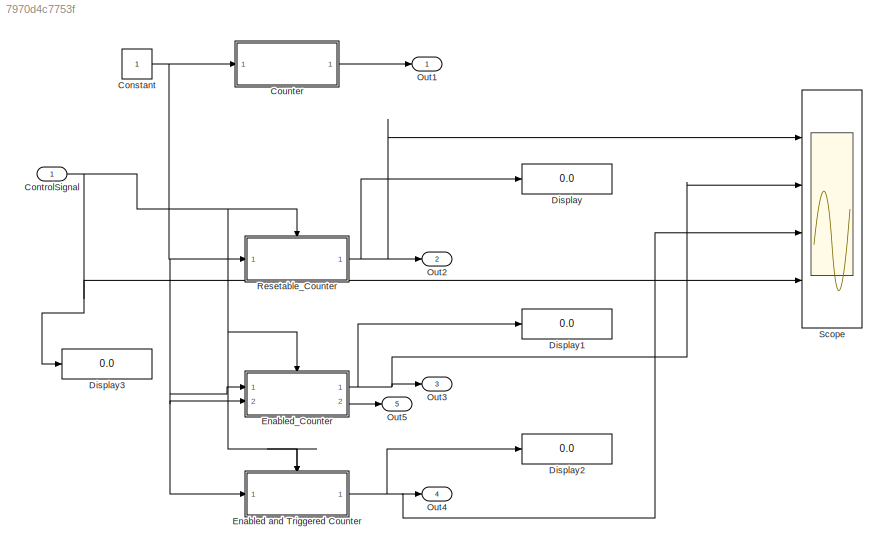
MODEL slx_7970d4c7753f
KIND model
CONFIG AbsTol = auto
CONFIG EnableMultiTasking = off
CONFIG FixedStep = 0.200000
CONFIG MaxStep = auto
CONFIG MinStep = auto
CONFIG RelTol = 1e-3
CONFIG SampleTimeConstraint = Unconstrained
CONFIG Solver = FixedStepDiscrete
CONFIG SolverName = FixedStepDiscrete
CONFIG StartTime = 0.0
CONFIG StopTime = 10.0
BLOCK [Constant] Constant
BLOCK [Inport] ControlSignal
  IconDisplay = Port number
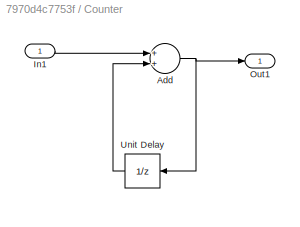
BLOCK [SubSystem] Counter
  Ports = [1, 1]
  RequestExecContextInheritance = off
  Variant = off
BLOCK [Sum] Counter/Add
  InputSameDT = off
  OutDataTypeStr = Inherit: Inherit via internal rule
  Ports = [2, 1]
  SaturateOnIntegerOverflow = off
BLOCK [Inport] Counter/In1
  IconDisplay = Port number
BLOCK [Outport] Counter/Out1
  IconDisplay = Port number
BLOCK [UnitDelay] Counter/Unit Delay
  InputProcessing = Elements as channels (sample based)
  SampleTime = -1
BLOCK [Display] Display
  Decimation = 1
  Ports = [1]
BLOCK [Display] Display1
  Decimation = 1
  Ports = [1]
BLOCK [Display] Display2
  Decimation = 1
  Ports = [1]
BLOCK [Display] Display3
  Decimation = 1
  Ports = [1]
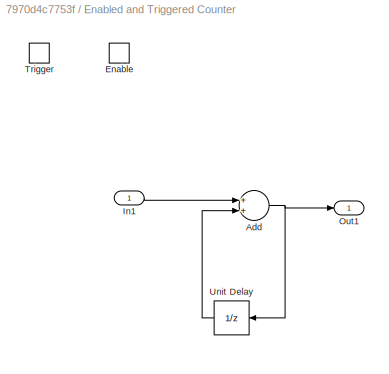
BLOCK [SubSystem] Enabled and Triggered Counter
  Ports = [1, 1, 1, 1]
  RequestExecContextInheritance = off
  TreatAsAtomicUnit = on
  Variant = off
BLOCK [Sum] Enabled and Triggered Counter/Add
  InputSameDT = off
  OutDataTypeStr = Inherit: Inherit via internal rule
  Ports = [2, 1]
  SaturateOnIntegerOverflow = off
BLOCK [EnablePort] Enabled and Triggered Counter/Enable
  Ports = []
  StatesWhenEnabling = reset
BLOCK [Inport] Enabled and Triggered Counter/In1
  IconDisplay = Port number
BLOCK [Outport] Enabled and Triggered Counter/Out1
  IconDisplay = Port number
BLOCK [TriggerPort] Enabled and Triggered Counter/Trigger
  Ports = []
  StatesWhenEnabling = held
  VariantControl = (inherit)
BLOCK [UnitDelay] Enabled and Triggered Counter/Unit Delay
  InputProcessing = Elements as channels (sample based)
  SampleTime = -1
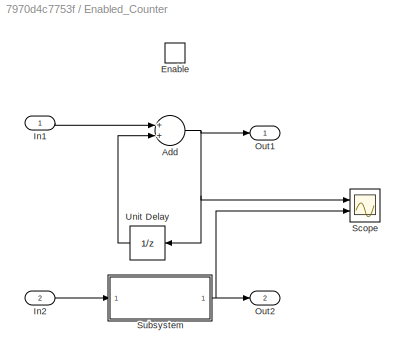
BLOCK [SubSystem] Enabled_Counter
  Ports = [2, 2, 1]
  RequestExecContextInheritance = off
  TreatAsAtomicUnit = on
  Variant = off
BLOCK [Sum] Enabled_Counter/Add
  InputSameDT = off
  OutDataTypeStr = Inherit: Inherit via internal rule
  Ports = [2, 1]
  SaturateOnIntegerOverflow = off
BLOCK [EnablePort] Enabled_Counter/Enable
  Ports = []
BLOCK [Inport] Enabled_Counter/In1
  IconDisplay = Port number
BLOCK [Inport] Enabled_Counter/In2
  IconDisplay = Port number
  Port = 2
BLOCK [Outport] Enabled_Counter/Out1
  IconDisplay = Port number
  InitialOutput = 0.2
  OutputWhenDisabled = reset
BLOCK [Outport] Enabled_Counter/Out2
  IconDisplay = Port number
  Port = 2
BLOCK [Scope] Enabled_Counter/Scope
  NumInputPorts = 2
  Ports = [2]
  ScopeSpecificationString = C++SS(StrPVP('Open','off'),StrPVP('TimeRange','auto'),StrPVP('TickLabels','OneTimeTick'),StrPVP('ShowLegends','off'),StrPVP('LimitDataPoints','off'),StrPVP('MaxDataPoints','5000'),StrPVP('SaveToWorkspace','off'),StrPVP('SaveName','ScopeData2'),StrPVP('YMin','-10.00000~0.625'),StrPVP('YMax','10.00000~4.375'),StrPVP('BlockParamSampleInput','off'),StrPVP('BlockParamSampleTime','-1'),StrPVP('ZoomMode'...<+621ch>
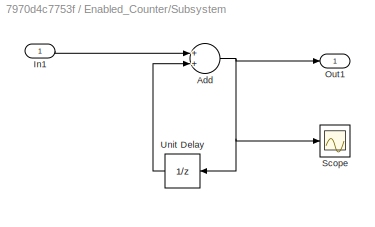
BLOCK [SubSystem] Enabled_Counter/Subsystem
  Ports = [1, 1]
  RequestExecContextInheritance = off
  TreatAsAtomicUnit = on
  Variant = off
BLOCK [Sum] Enabled_Counter/Subsystem/Add
  InputSameDT = off
  OutDataTypeStr = Inherit: Inherit via internal rule
  Ports = [2, 1]
  SaturateOnIntegerOverflow = off
BLOCK [Inport] Enabled_Counter/Subsystem/In1
  IconDisplay = Port number
BLOCK [Outport] Enabled_Counter/Subsystem/Out1
  IconDisplay = Port number
BLOCK [Scope] Enabled_Counter/Subsystem/Scope
  NumInputPorts = 1
  Ports = [1]
  ScopeSpecificationString = C++SS(StrPVP('Open','off'),StrPVP('TimeRange','auto'),StrPVP('TickLabels','OneTimeTick'),StrPVP('ShowLegends','off'),StrPVP('LimitDataPoints','off'),StrPVP('MaxDataPoints','5000'),StrPVP('SaveToWorkspace','off'),StrPVP('SaveName','ScopeData1'),StrPVP('YMin','0.625'),StrPVP('YMax','4.375'),StrPVP('BlockParamSampleInput','off'),StrPVP('BlockParamSampleTime','-1'),StrPVP('ZoomMode','on'),StrPVP('Grid...<+573ch>
BLOCK [UnitDelay] Enabled_Counter/Subsystem/Unit Delay
  InputProcessing = Elements as channels (sample based)
  SampleTime = -1
BLOCK [UnitDelay] Enabled_Counter/Unit Delay
  InputProcessing = Elements as channels (sample based)
  SampleTime = -1
BLOCK [Outport] Out1
  IconDisplay = Port number
BLOCK [Outport] Out2
  IconDisplay = Port number
  Port = 2
BLOCK [Outport] Out3
  IconDisplay = Port number
  Port = 3
BLOCK [Outport] Out4
  IconDisplay = Port number
  Port = 4
BLOCK [Outport] Out5
  IconDisplay = Port number
  Port = 5
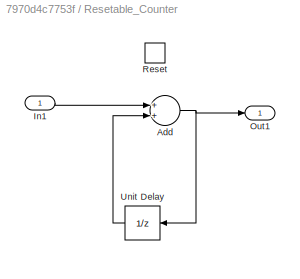
BLOCK [SubSystem] Resetable_Counter
  Ports = [1, 1, 0, 0, 0, 0, 0, 0, 1]
  RequestExecContextInheritance = off
  Variant = off
BLOCK [Sum] Resetable_Counter/Add
  InputSameDT = off
  OutDataTypeStr = Inherit: Inherit via internal rule
  Ports = [2, 1]
  SaturateOnIntegerOverflow = off
BLOCK [Inport] Resetable_Counter/In1
  IconDisplay = Port number
BLOCK [Outport] Resetable_Counter/Out1
  IconDisplay = Port number
BLOCK [ResetPort] Resetable_Counter/Reset
  DisableCoverage = on
BLOCK [UnitDelay] Resetable_Counter/Unit Delay
  InputProcessing = Elements as channels (sample based)
  SampleTime = -1
BLOCK [Scope] Scope
  NumInputPorts = 4
  Ports = [4]
  ScopeSpecificationString = C++SS(StrPVP('Open','off'),StrPVP('TimeRange','auto'),StrPVP('TickLabels','OneTimeTick'),StrPVP('ShowLegends','off'),StrPVP('LimitDataPoints','off'),StrPVP('MaxDataPoints','5000'),StrPVP('SaveToWorkspace','off'),StrPVP('SaveName','ScopeData'),StrPVP('YMin','0.5~-7.56953~-0.125~-0.125'),StrPVP('YMax','5.5~17.93047~1.125~1.125'),StrPVP('BlockParamSampleInput','off'),StrPVP('BlockParamSampleTime','-1...<+685ch>
NET Constant:1 -> Counter:1, Enabled and Triggered Counter:1, Enabled_Counter:1, Enabled_Counter:2, Resetable_Counter:1
NET ControlSignal:1 -> Display3:1, Enabled and Triggered Counter:enable, Enabled and Triggered Counter:trigger, Enabled_Counter:enable, Resetable_Counter:Reset, Scope:4
NET Counter/Add:1 -> Counter/Out1:1, Counter/Unit Delay:1
LINE Counter/In1:1 -> Counter/Add:1
LINE Counter/Unit Delay:1 -> Counter/Add:2
LINE Counter:1 -> Out1:1
NET Enabled and Triggered Counter/Add:1 -> Enabled and Triggered Counter/Out1:1, Enabled and Triggered Counter/Unit Delay:1
LINE Enabled and Triggered Counter/In1:1 -> Enabled and Triggered Counter/Add:1
LINE Enabled and Triggered Counter/Unit Delay:1 -> Enabled and Triggered Counter/Add:2
NET Enabled and Triggered Counter:1 -> Display2:1, Out4:1, Scope:3
NET Enabled_Counter/Add:1 -> Enabled_Counter/Out1:1, Enabled_Counter/Scope:1, Enabled_Counter/Unit Delay:1
LINE Enabled_Counter/In1:1 -> Enabled_Counter/Add:1
LINE Enabled_Counter/In2:1 -> Enabled_Counter/Subsystem:1
NET Enabled_Counter/Subsystem/Add:1 -> Enabled_Counter/Subsystem/Out1:1, Enabled_Counter/Subsystem/Scope:1, Enabled_Counter/Subsystem/Unit Delay:1
LINE Enabled_Counter/Subsystem/In1:1 -> Enabled_Counter/Subsystem/Add:1
LINE Enabled_Counter/Subsystem/Unit Delay:1 -> Enabled_Counter/Subsystem/Add:2
NET Enabled_Counter/Subsystem:1 -> Enabled_Counter/Out2:1, Enabled_Counter/Scope:2
LINE Enabled_Counter/Unit Delay:1 -> Enabled_Counter/Add:2
NET Enabled_Counter:1 -> Display1:1, Out3:1, Scope:2
LINE Enabled_Counter:2 -> Out5:1
NET Resetable_Counter/Add:1 -> Resetable_Counter/Out1:1, Resetable_Counter/Unit Delay:1
LINE Resetable_Counter/In1:1 -> Resetable_Counter/Add:1
LINE Resetable_Counter/Unit Delay:1 -> Resetable_Counter/Add:2
NET Resetable_Counter:1 -> Display:1, Out2:1, Scope:1
note: NET lines group one-source signal fan-out (src -> all destinations, sorted); 1:1 wires keep LINE
